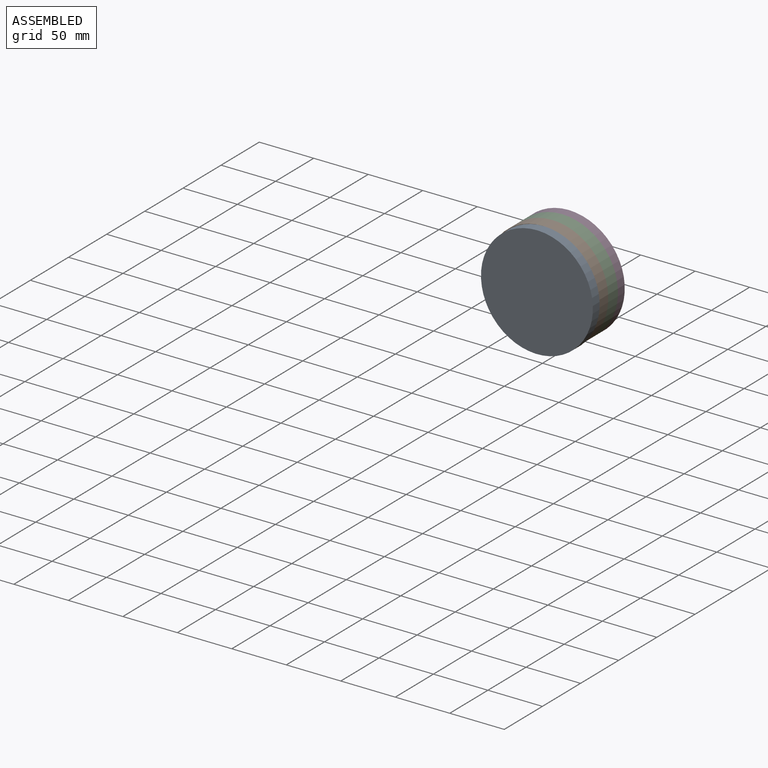
[diagram: assembled view]
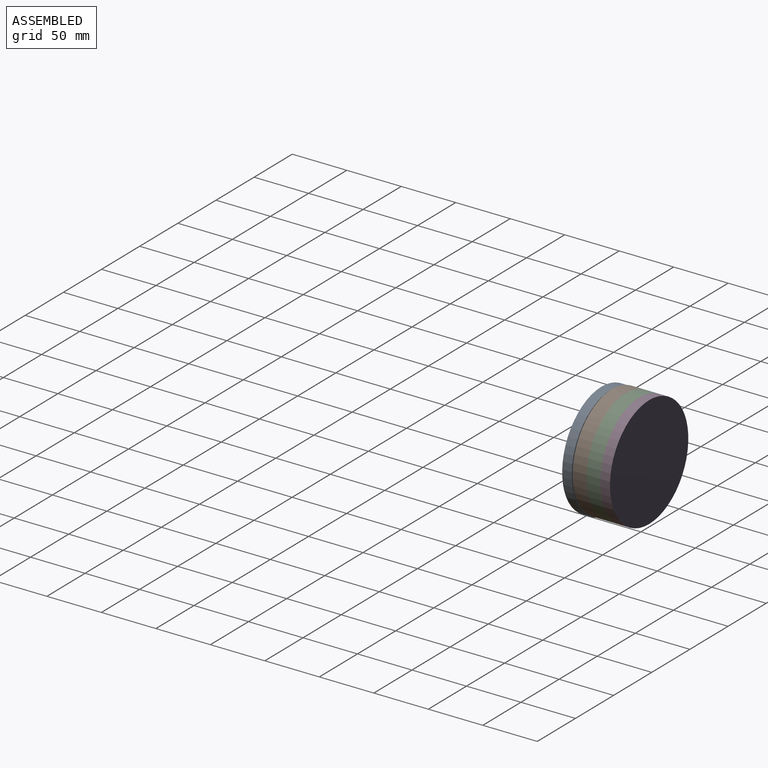
[diagram: assembled view, second angle]
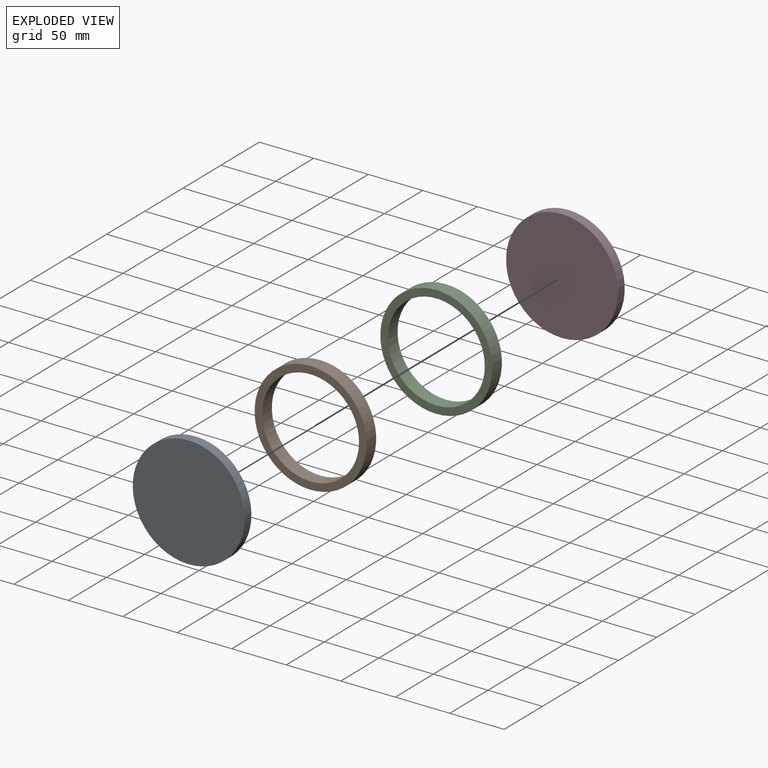
[diagram: exploded view]
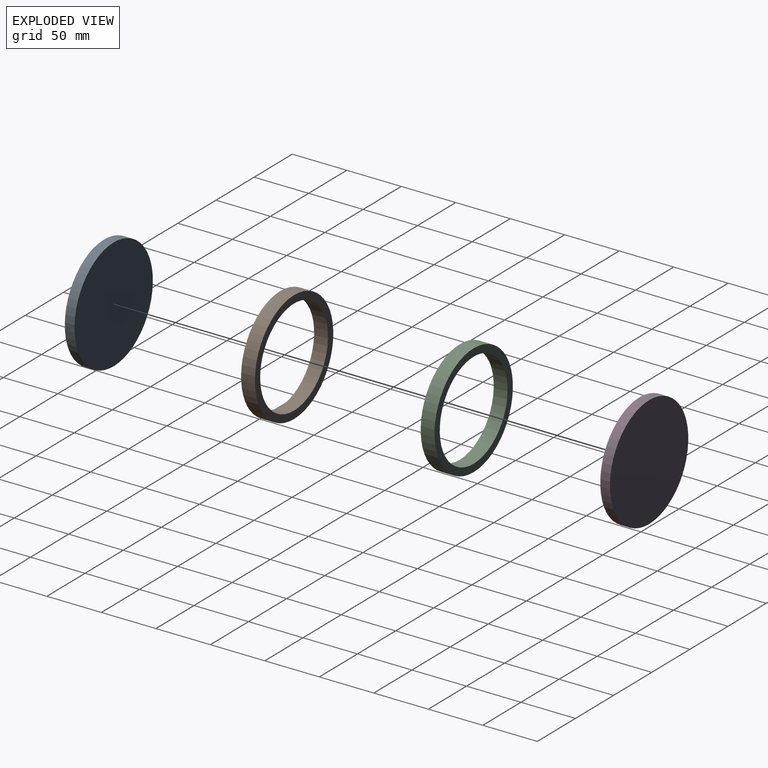
[diagram: exploded view, second angle]
ASSEMBLY  parts=4 mates=3
PART A: 4 faces, bbox 102.7x8.9x102.8 mm
  f0: cylinder r=51.39mm len=102.78mm, axis (0,1,0), area 1439mm2, adj f1,f2,f3
  f1: cylinder r=51.39mm len=102.78mm, axis (0,1,0), area 1429.9mm2, adj f0,f2,f3
  f2: plane 102.78x102.69mm, normal (0,-1,0), area 8287.3mm2, adj f0,f1
  f3: plane 102.78x102.69mm, normal (0,1,0), area 8287.3mm2, adj f0,f1
PART B: 5 faces, bbox 102.7x12.7x102.8 mm
  f0: cylinder r=51.39mm len=102.78mm, axis (0,1,0), area 2055.7mm2, adj f1,f2,f3
  f1: cylinder r=51.39mm len=102.78mm, axis (0,1,0), area 2042.7mm2, adj f0,f2,f3
  f2: plane 102.78x102.69mm, normal (0,-1,0), area 2080.1mm2, adj f0,f1,f4
  f3: plane 102.78x102.69mm, normal (0,1,0), area 2080.1mm2, adj f0,f1,f4
  f4: cylinder r=44.45mm len=88.9mm, axis (0,-1,0), area 3547mm2, adj f2,f3
PART C: same geometry as B
PART D: same geometry as A
PLACE A rot(axis=(0,1,0),1.1deg) t=(33.38,-34.29,48.9)mm
PLACE B t=(32.29,-21.59,48.78)mm
PLACE C t=(32.29,-8.89,48.78)mm
PLACE D t=(32.29,0,48.78)mm fixed
MATE fastened D.f2 <-> C.f3  axis (0,-1,0) through (38.89,-8.89,-9.5)mm
MATE fastened C.f2 <-> B.f3  axis (0,-1,0) through (38.89,-21.59,-9.5)mm
MATE revolute B.f2 <-> A.f3  axis (0,-1,0) through (38.89,-34.29,-9.5)mm
